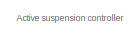
[diagram: root canvas - part 1/4, top left region]
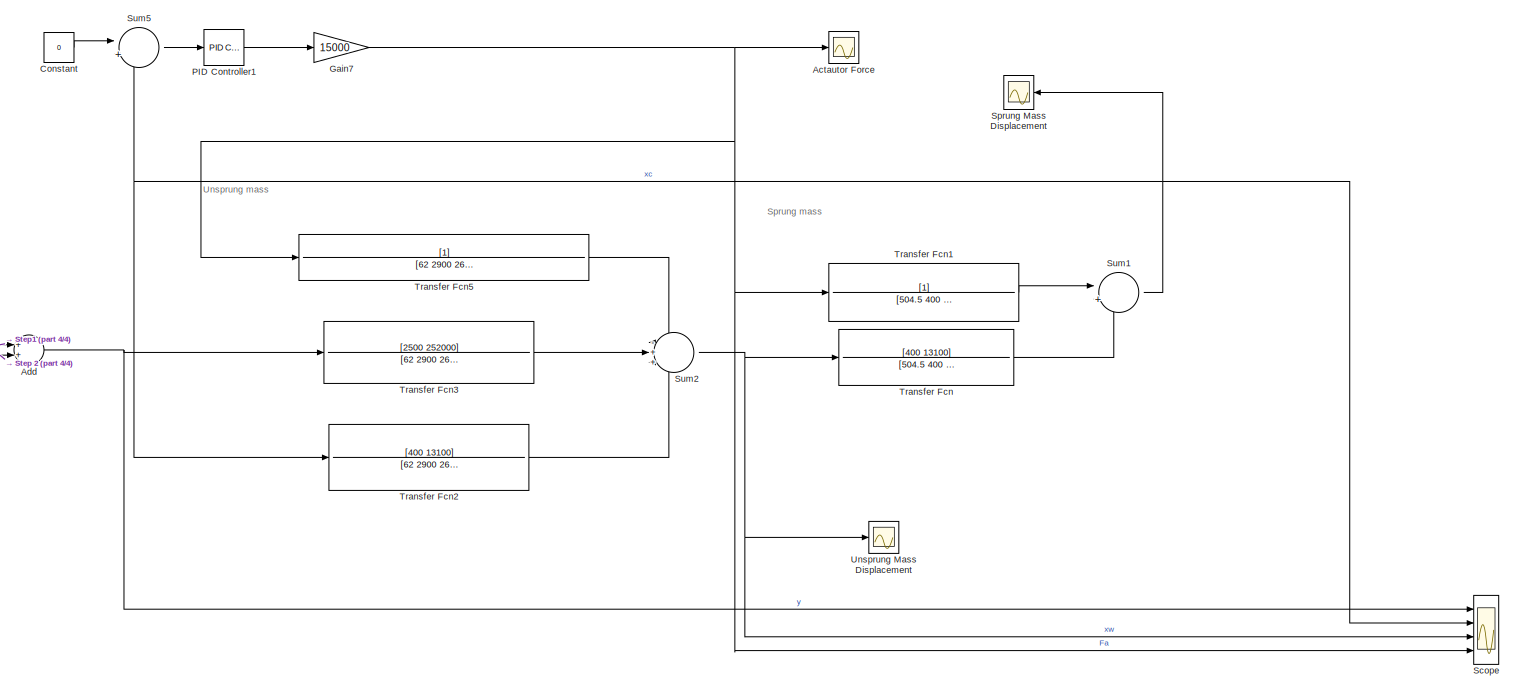
[diagram: root canvas - part 2/4, most of the canvas]
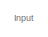
[diagram: root canvas - part 3/4, middle left region]
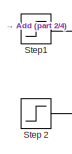
[diagram: root canvas - part 4/4, middle left region]
MODEL slx_baf0defdc7d0
KIND model
CONFIG AbsTol = auto
CONFIG EnableMultiTasking = off
CONFIG FixedStep = auto
CONFIG MaxStep = auto
CONFIG MinStep = auto
CONFIG RelTol = 1e-3
CONFIG SampleTimeConstraint = Unconstrained
CONFIG Solver = VariableStepAuto
CONFIG SolverName = VariableStepAuto
CONFIG StartTime = 0.0
CONFIG StopTime = 20
BLOCK [Scope] Actautor Force
  Floating = off
  NumInputPorts = 1
  Ports = [1]
  ScopeSpecificationString = Simulink.scopes.TimeScopeBlockCfg('CurrentConfiguration', extmgr.ConfigurationSet(extmgr.Configuration('Core','General UI',true),extmgr.Configuration('Core','Source UI',true),extmgr.Configuration('Sources','WiredSimulink',true),extmgr.Configuration('Visuals','Time Domain',true,'SerializedDisplays',{struct('MinYLimReal','-192602.64031','MaxYLimReal','64703.59265','YLabelReal','Fa (N)','MinYLimMag',...<+1432ch>
BLOCK [Sum] Add
  InputSameDT = off
  OutDataTypeStr = Inherit: Inherit via internal rule
  Ports = [2, 1]
  SaturateOnIntegerOverflow = off
BLOCK [Constant] Constant
  Value = 0
BLOCK [Gain] Gain7
  Gain = 15000
  OutDataTypeStr = Inherit: Inherit via internal rule
  ParamDataTypeStr = Inherit: Inherit via internal rule
  SaturateOnIntegerOverflow = off
BLOCK [Reference] PID Controller1  REF=simulink/Continuous/PID Controller
  Ports = [1, 1]
  SourceBlock = simulink/Continuous/PID Controller
  SourceProductBaseCode = SL
  SourceProductName = Simulink
  SourceType = PID 1dof
BLOCK [Scope] Scope
  Floating = off
  NumInputPorts = 4
  Ports = [4]
  ScopeSpecificationString = Simulink.scopes.TimeScopeBlockCfg('CurrentConfiguration', extmgr.ConfigurationSet(extmgr.Configuration('Core','General UI',true),extmgr.Configuration('Core','Source UI',true),extmgr.Configuration('Sources','WiredSimulink',true,'DataLoggingVariableName','ScopeData1'),extmgr.Configuration('Visuals','Time Domain',true,'SerializedDisplays',{struct('MinYLimReal','-13.74383','MaxYLimReal','14.53779','YL...<+1585ch>
BLOCK [Scope] Sprung Mass Displacement
  Floating = off
  NumInputPorts = 1
  Ports = [1]
  ScopeSpecificationString = Simulink.scopes.TimeScopeBlockCfg('CurrentConfiguration', extmgr.ConfigurationSet(extmgr.Configuration('Core','General UI',true),extmgr.Configuration('Core','Source UI',true),extmgr.Configuration('Sources','WiredSimulink',true,'DataLoggingVariableName','ScopeData2'),extmgr.Configuration('Visuals','Time Domain',true,'SerializedDisplays',{struct('MinYLimReal','-2.00749','MaxYLimReal','2.23076','YLab...<+1448ch>
BLOCK [Step] Step 2
  After = -10
  SampleTime = 0
  Time = 5
BLOCK [Step] Step1
  After = 10
  SampleTime = 0
  Time = 3
BLOCK [Sum] Sum1
  IconShape = round
  InputSameDT = off
  Inputs = |++
  OutDataTypeStr = Inherit: Inherit via internal rule
  Ports = [2, 1]
  SaturateOnIntegerOverflow = off
BLOCK [Sum] Sum2
  IconShape = round
  InputSameDT = off
  Inputs = -++
  OutDataTypeStr = Inherit: Inherit via internal rule
  Ports = [3, 1]
  SaturateOnIntegerOverflow = off
BLOCK [Sum] Sum5
  IconShape = round
  InputSameDT = off
  Inputs = |+-
  OutDataTypeStr = Inherit: Inherit via internal rule
  Ports = [2, 1]
  SaturateOnIntegerOverflow = off
BLOCK [TransferFcn] Transfer Fcn
  Denominator = [504.5  400  13100]
  Numerator = [400  13100]
BLOCK [TransferFcn] Transfer Fcn1
  Denominator = [504.5  400  13100]
BLOCK [TransferFcn] Transfer Fcn2
  Denominator = [62  2900  265100]
  Numerator = [400 13100]
BLOCK [TransferFcn] Transfer Fcn3
  Denominator = [62  2900  265100]
  Numerator = [2500 252000]
BLOCK [TransferFcn] Transfer Fcn5
  Denominator = [62  2900  265100]
BLOCK [Scope] Unsprung Mass Displacement
  Floating = off
  NumInputPorts = 1
  Ports = [1]
  ScopeSpecificationString = Simulink.scopes.TimeScopeBlockCfg('CurrentConfiguration', extmgr.ConfigurationSet(extmgr.Configuration('Core','General UI',true),extmgr.Configuration('Core','Source UI',true),extmgr.Configuration('Sources','WiredSimulink',true,'DataLoggingVariableName','ScopeData1'),extmgr.Configuration('Visuals','Time Domain',true,'SerializedDisplays',{struct('MinYLimReal','-5.41','MaxYLimReal','15.17598','YLabel...<+1459ch>
ANNOTATION (root): Active suspension controller
ANNOTATION (root): Input
ANNOTATION (root): Sprung mass
ANNOTATION (root): Unsprung mass
NET Add:1 -> Scope:1, Transfer Fcn3:1
LINE Constant:1 -> Sum5:1
NET Gain7:1 -> Actautor Force:1, Scope:4, Transfer Fcn1:1, Transfer Fcn5:1
LINE PID Controller1:1 -> Gain7:1
LINE Step 2:1 -> Add:2
LINE Step1:1 -> Add:1
NET Sum1:1 -> Scope:2, Sprung Mass Displacement:1, Sum5:2, Transfer Fcn2:1
NET Sum2:1 -> Scope:3, Transfer Fcn:1, Unsprung Mass Displacement:1
LINE Sum5:1 -> PID Controller1:1
LINE Transfer Fcn1:1 -> Sum1:1
LINE Transfer Fcn2:1 -> Sum2:3
LINE Transfer Fcn3:1 -> Sum2:2
LINE Transfer Fcn5:1 -> Sum2:1
LINE Transfer Fcn:1 -> Sum1:2
note: NET lines group one-source signal fan-out (src -> all destinations, sorted); 1:1 wires keep LINE
